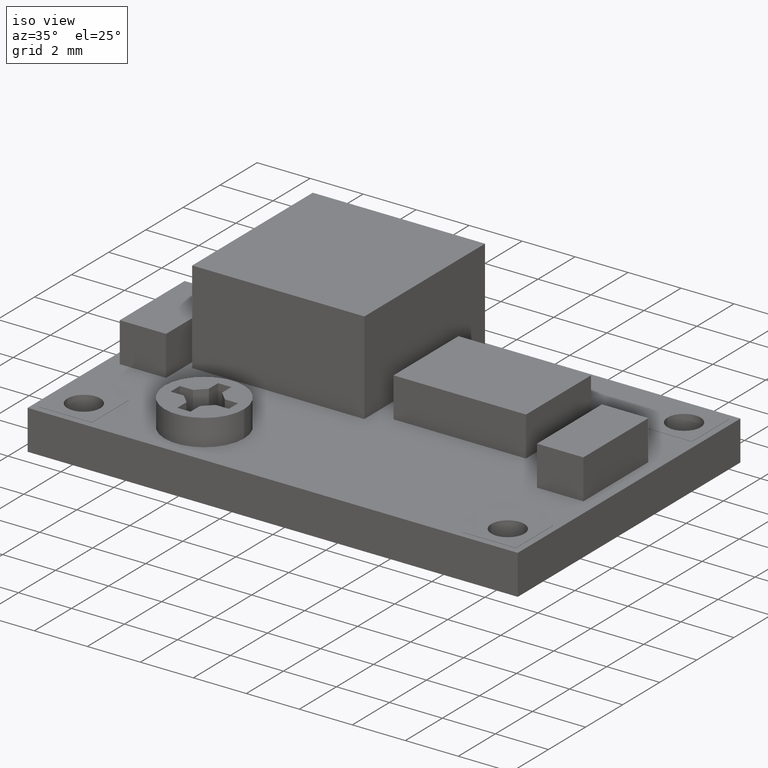
[diagram: clean part render]
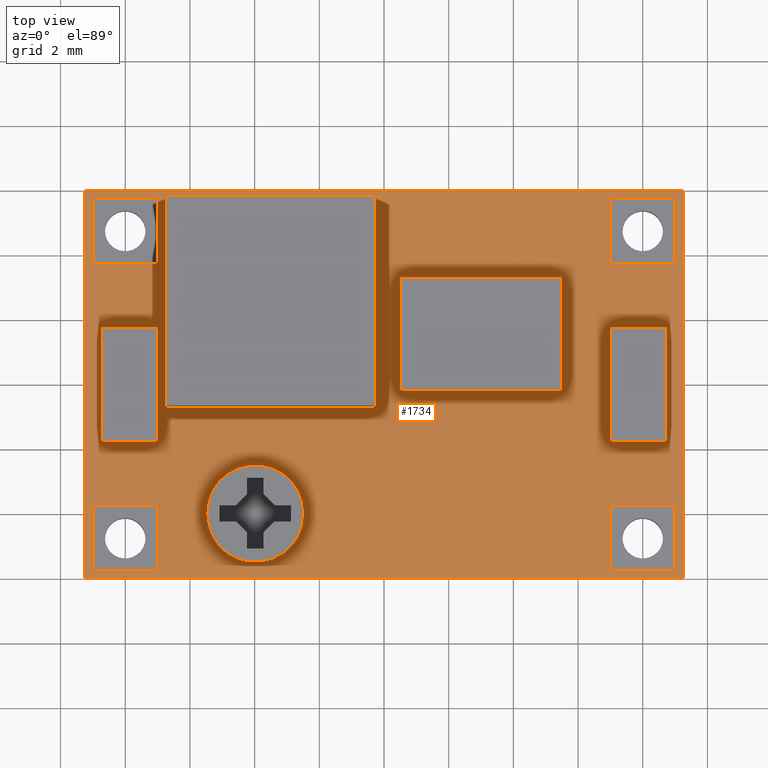
[diagram: tour spotlight — one face highlighted and labeled with its STEP entity id]
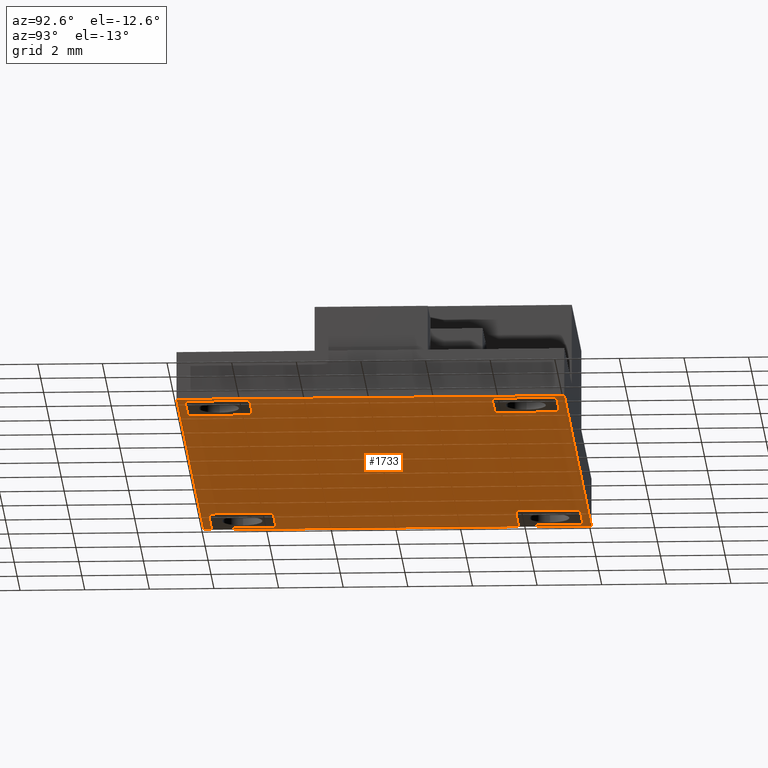
[diagram: tour spotlight — one face highlighted and labeled with its STEP entity id]
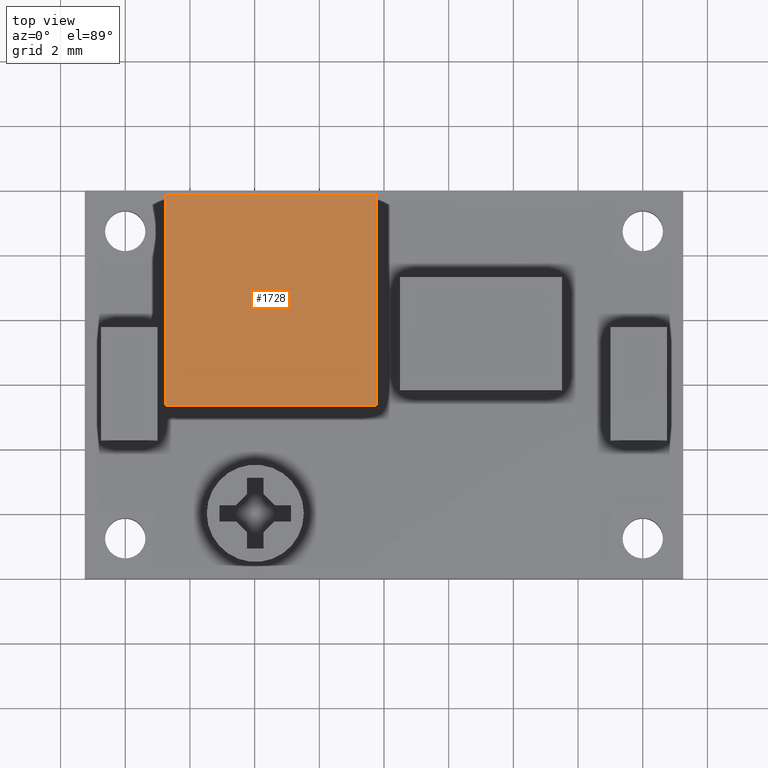
[diagram: tour spotlight — one face highlighted and labeled with its STEP entity id]
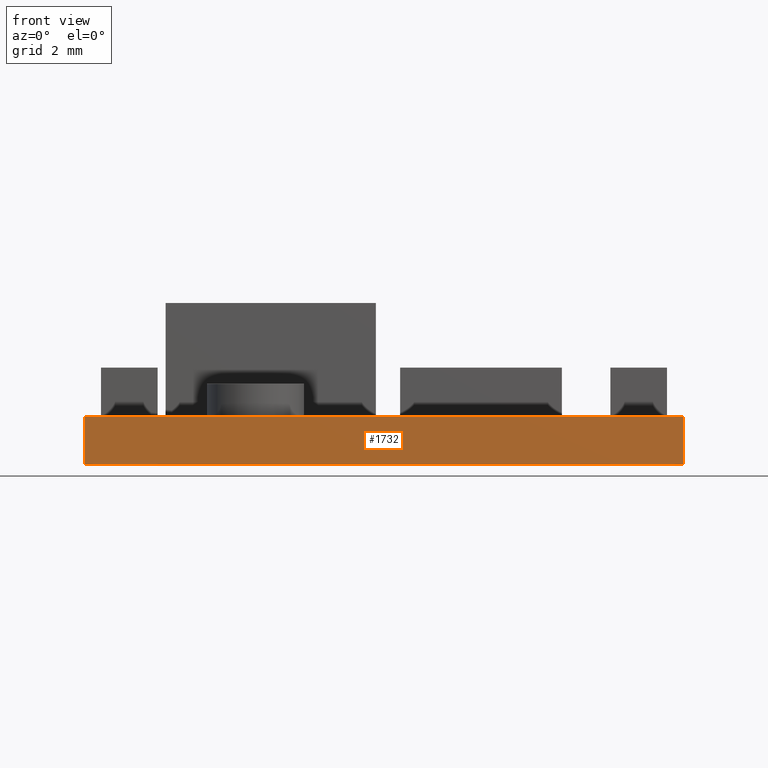
[diagram: tour spotlight — one face highlighted and labeled with its STEP entity id]
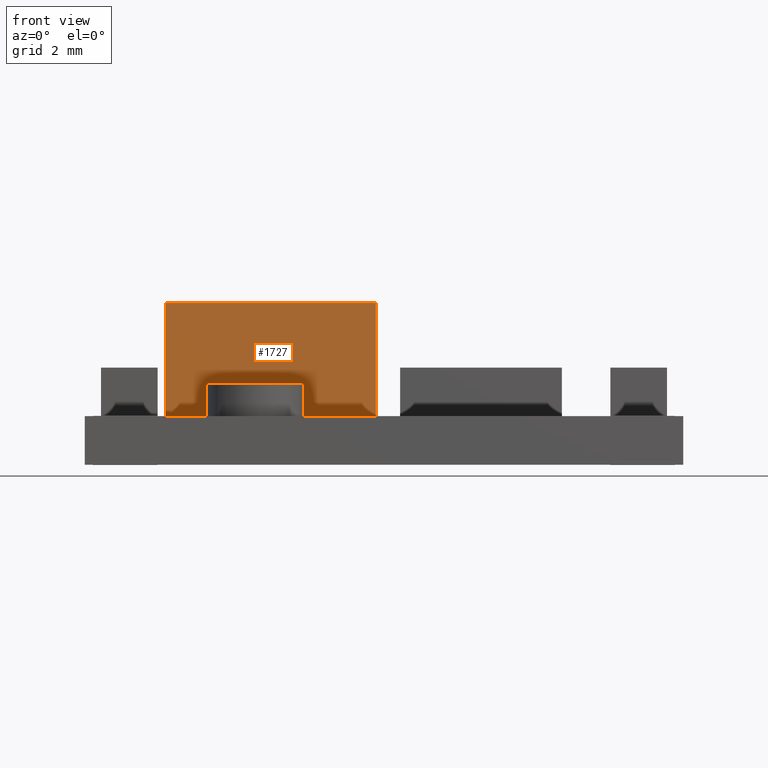
[diagram: tour spotlight — one face highlighted and labeled with its STEP entity id]
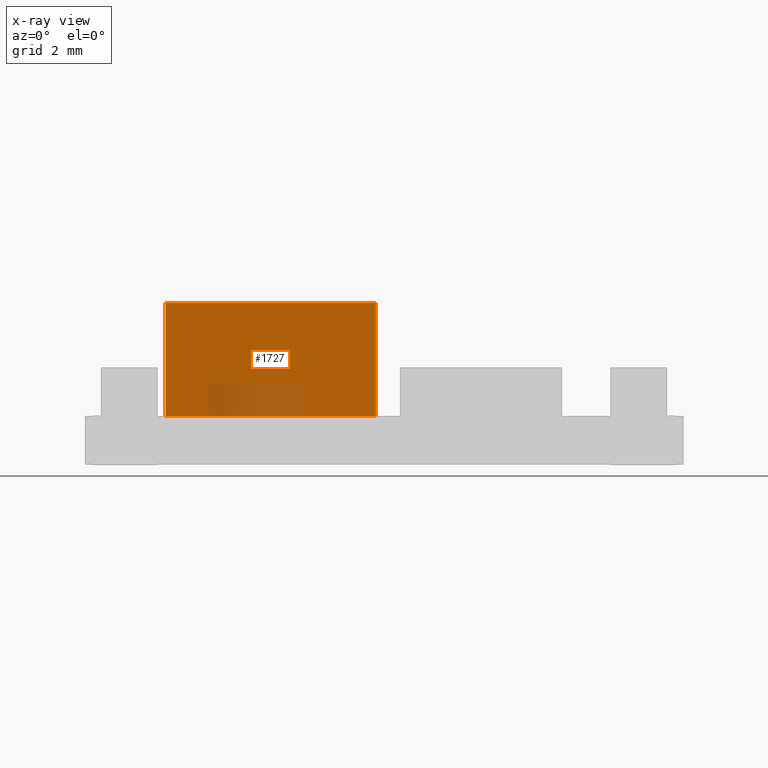
[diagram: x-ray of the same camera — body ghosted, this tour face saturated]
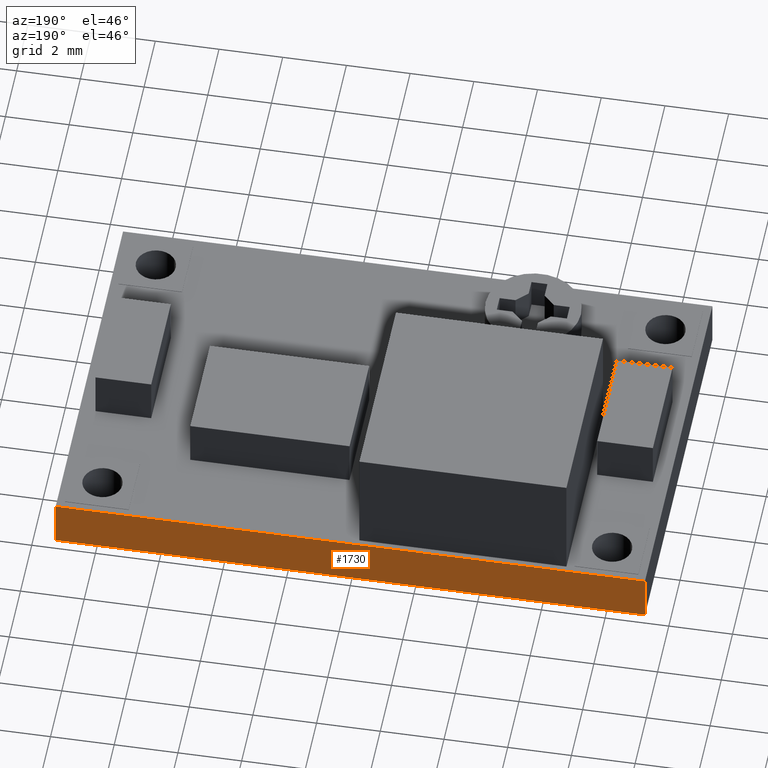
[diagram: tour spotlight — one face highlighted and labeled with its STEP entity id]
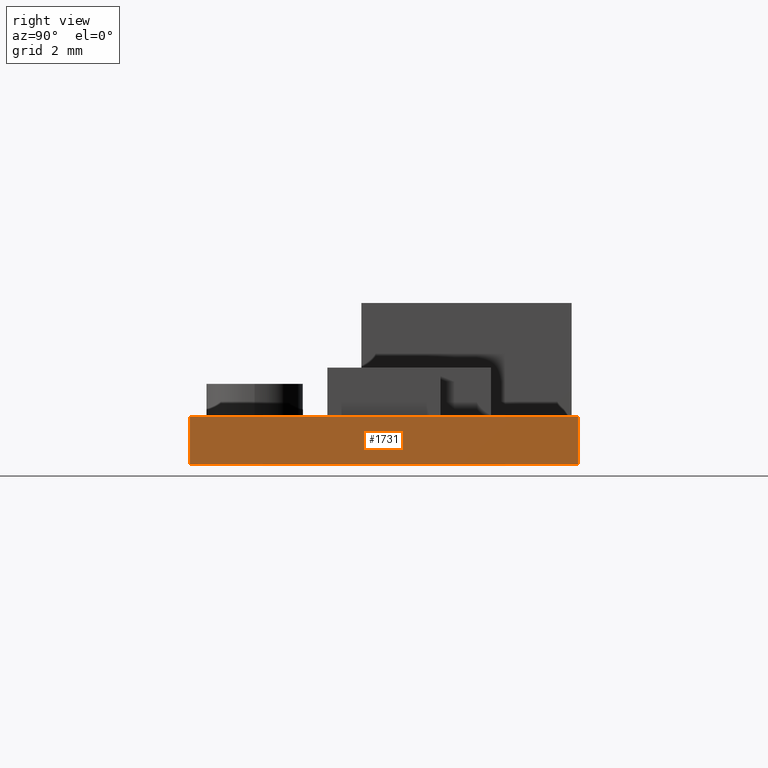
[diagram: tour spotlight — one face highlighted and labeled with its STEP entity id]
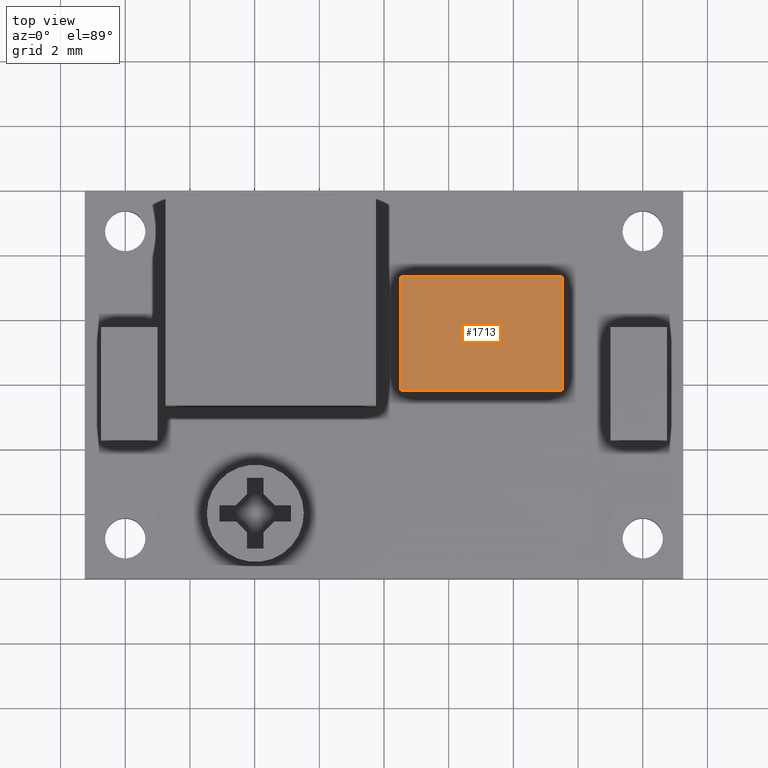
[diagram: tour spotlight — one face highlighted and labeled with its STEP entity id]
A machine part: a face-by-face anatomy tour. The part has 89 B-rep faces; the first image is the clean iso view, then the 8 largest visible faces are spotlighted one at a time (largest first), each with its STEP entity span.

Face 1 — top view, entity #1734. In plain terms, the highlighted planar face has unit normal (0, -0, 1).
Definition (entity closure, byte-faithful):
#27=FACE_BOUND('',#242,.T.);
#28=FACE_BOUND('',#243,.T.);
#29=FACE_BOUND('',#244,.T.);
#30=FACE_BOUND('',#245,.T.);
#31=FACE_BOUND('',#246,.T.);
#32=FACE_BOUND('',#247,.T.);
#33=FACE_BOUND('',#248,.T.);
#34=FACE_BOUND('',#249,.T.);
#35=FACE_BOUND('',#250,.T.);
#37=CIRCLE('',#1768,1.5);
#139=FACE_OUTER_BOUND('',#241,.T.);
#241=EDGE_LOOP('',(#1435,#1436,#1437,#1438));
#242=EDGE_LOOP('',(#1439));
#243=EDGE_LOOP('',(#1440,#1441,#1442,#1443));
#244=EDGE_LOOP('',(#1444,#1445,#1446,#1447));
#245=EDGE_LOOP('',(#1448,#1449,#1450,#1451));
#246=EDGE_LOOP('',(#1452,#1453,#1454,#1455));
#247=EDGE_LOOP('',(#1456,#1457,#1458,#1459));
#248=EDGE_LOOP('',(#1460,#1461,#1462,#1463));
#249=EDGE_LOOP('',(#1464,#1465,#1466,#1467));
#250=EDGE_LOOP('',(#1468,#1469,#1470,#1471));
#304=LINE('',#2389,#513);
#308=LINE('',#2397,#517);
#311=LINE('',#2403,#520);
#318=LINE('',#2417,#527);
#328=LINE('',#2439,#537);
#332=LINE('',#2447,#541);
#335=LINE('',#2453,#544);
#342=LINE('',#2467,#551);
#352=LINE('',#2489,#561);
#356=LINE('',#2497,#565);
#359=LINE('',#2503,#568);
#366=LINE('',#2517,#575);
#376=LINE('',#2539,#585);
#380=LINE('',#2547,#589);
#383=LINE('',#2553,#592);
#390=LINE('',#2567,#599);
#400=LINE('',#2589,#609);
#404=LINE('',#2597,#613);
#407=LINE('',#2603,#616);
#410=LINE('',#2608,#619);
#412=LINE('',#2614,#621);
#416=LINE('',#2622,#625);
#419=LINE('',#2628,#628);
#422=LINE('',#2633,#631);
#424=LINE('',#2639,#633);
#428=LINE('',#2647,#637);
#431=LINE('',#2653,#640);
#434=LINE('',#2658,#643);
#436=LINE('',#2664,#645);
#440=LINE('',#2672,#649);
#443=LINE('',#2678,#652);
#446=LINE('',#2683,#655);
#450=LINE('',#2693,#659);
#453=LINE('',#2699,#662);
#456=LINE('',#2705,#665);
#459=LINE('',#2709,#668);
#513=VECTOR('',#1971,10.);
#517=VECTOR('',#1977,10.);
#520=VECTOR('',#1982,10.);
#527=VECTOR('',#1993,10.);
#537=VECTOR('',#2015,10.);
#541=VECTOR('',#2021,10.);
#544=VECTOR('',#2026,10.);
#551=VECTOR('',#2037,10.);
#561=VECTOR('',#2059,10.);
#565=VECTOR('',#2065,10.);
#568=VECTOR('',#2070,10.);
#575=VECTOR('',#2081,10.);
#585=VECTOR('',#2103,10.);
#589=VECTOR('',#2109,10.);
#592=VECTOR('',#2114,10.);
#599=VECTOR('',#2125,10.);
#609=VECTOR('',#2147,10.);
#613=VECTOR('',#2153,10.);
#616=VECTOR('',#2158,10.);
#619=VECTOR('',#2163,10.);
#621=VECTOR('',#2169,10.);
#625=VECTOR('',#2175,10.);
#628=VECTOR('',#2180,10.);
#631=VECTOR('',#2185,10.);
#633=VECTOR('',#2191,10.);
#637=VECTOR('',#2197,10.);
#640=VECTOR('',#2202,10.);
#643=VECTOR('',#2207,10.);
#645=VECTOR('',#2213,10.);
#649=VECTOR('',#2219,10.);
#652=VECTOR('',#2224,10.);
#655=VECTOR('',#2229,10.);
#659=VECTOR('',#2237,10.);
#662=VECTOR('',#2242,10.);
#665=VECTOR('',#2247,10.);
#668=VECTOR('',#2252,10.);
#702=VERTEX_POINT('',#2358);
#711=VERTEX_POINT('',#2387);
#712=VERTEX_POINT('',#2388);
#715=VERTEX_POINT('',#2396);
#717=VERTEX_POINT('',#2402);
#727=VERTEX_POINT('',#2437);
#728=VERTEX_POINT('',#2438);
#731=VERTEX_POINT('',#2446);
#733=VERTEX_POINT('',#2452);
#743=VERTEX_POINT('',#2487);
#744=VERTEX_POINT('',#2488);
#747=VERTEX_POINT('',#2496);
#749=VERTEX_POINT('',#2502);
#759=VERTEX_POINT('',#2537);
#760=VERTEX_POINT('',#2538);
#763=VERTEX_POINT('',#2546);
#765=VERTEX_POINT('',#2552);
#775=VERTEX_POINT('',#2587);
#776=VERTEX_POINT('',#2588);
#779=VERTEX_POINT('',#2596);
#781=VERTEX_POINT('',#2602);
#783=VERTEX_POINT('',#2612);
#784=VERTEX_POINT('',#2613);
#787=VERTEX_POINT('',#2621);
#789=VERTEX_POINT('',#2627);
#791=VERTEX_POINT('',#2637);
#792=VERTEX_POINT('',#2638);
#795=VERTEX_POINT('',#2646);
#797=VERTEX_POINT('',#2652);
#799=VERTEX_POINT('',#2662);
#800=VERTEX_POINT('',#2663);
#803=VERTEX_POINT('',#2671);
#805=VERTEX_POINT('',#2677);
#809=VERTEX_POINT('',#2690);
#810=VERTEX_POINT('',#2692);
#812=VERTEX_POINT('',#2698);
#814=VERTEX_POINT('',#2704);
#865=EDGE_CURVE('',#702,#702,#37,.T.);
#878=EDGE_CURVE('',#711,#712,#304,.T.);
#882=EDGE_CURVE('',#715,#711,#308,.T.);
#885=EDGE_CURVE('',#712,#717,#311,.T.);
#892=EDGE_CURVE('',#717,#715,#318,.T.);
#902=EDGE_CURVE('',#727,#728,#328,.T.);
#906=EDGE_CURVE('',#731,#727,#332,.T.);
#909=EDGE_CURVE('',#728,#733,#335,.T.);
#916=EDGE_CURVE('',#733,#731,#342,.T.);
#926=EDGE_CURVE('',#743,#744,#352,.T.);
#930=EDGE_CURVE('',#747,#743,#356,.T.);
#933=EDGE_CURVE('',#744,#749,#359,.T.);
#940=EDGE_CURVE('',#749,#747,#366,.T.);
#950=EDGE_CURVE('',#759,#760,#376,.T.);
#954=EDGE_CURVE('',#763,#759,#380,.T.);
#957=EDGE_CURVE('',#760,#765,#383,.T.);
#964=EDGE_CURVE('',#765,#763,#390,.T.);
#974=EDGE_CURVE('',#775,#776,#400,.T.);
#978=EDGE_CURVE('',#776,#779,#404,.T.);
#981=EDGE_CURVE('',#779,#781,#407,.T.);
#984=EDGE_CURVE('',#781,#775,#410,.T.);
#986=EDGE_CURVE('',#783,#784,#412,.T.);
#990=EDGE_CURVE('',#784,#787,#416,.T.);
#993=EDGE_CURVE('',#787,#789,#419,.T.);
#996=EDGE_CURVE('',#789,#783,#422,.T.);
#998=EDGE_CURVE('',#791,#792,#424,.T.);
#1002=EDGE_CURVE('',#792,#795,#428,.T.);
#1005=EDGE_CURVE('',#795,#797,#431,.T.);
#1008=EDGE_CURVE('',#797,#791,#434,.T.);
#1010=EDGE_CURVE('',#799,#800,#436,.T.);
#1014=EDGE_CURVE('',#800,#803,#440,.T.);
#1017=EDGE_CURVE('',#803,#805,#443,.T.);
#1020=EDGE_CURVE('',#805,#799,#446,.T.);
#1024=EDGE_CURVE('',#810,#809,#450,.T.);
#1027=EDGE_CURVE('',#812,#810,#453,.T.);
#1030=EDGE_CURVE('',#814,#812,#456,.T.);
#1033=EDGE_CURVE('',#809,#814,#459,.T.);
#1435=ORIENTED_EDGE('',*,*,#1033,.T.);
#1436=ORIENTED_EDGE('',*,*,#1030,.T.);
#1437=ORIENTED_EDGE('',*,*,#1027,.T.);
#1438=ORIENTED_EDGE('',*,*,#1024,.T.);
#1439=ORIENTED_EDGE('',*,*,#865,.T.);
#1440=ORIENTED_EDGE('',*,*,#892,.T.);
#1441=ORIENTED_EDGE('',*,*,#882,.T.);
#1442=ORIENTED_EDGE('',*,*,#878,.T.);
#1443=ORIENTED_EDGE('',*,*,#885,.T.);
#1444=ORIENTED_EDGE('',*,*,#916,.T.);
#1445=ORIENTED_EDGE('',*,*,#906,.T.);
#1446=ORIENTED_EDGE('',*,*,#902,.T.);
#1447=ORIENTED_EDGE('',*,*,#909,.T.);
#1448=ORIENTED_EDGE('',*,*,#940,.T.);
#1449=ORIENTED_EDGE('',*,*,#930,.T.);
#1450=ORIENTED_EDGE('',*,*,#926,.T.);
#1451=ORIENTED_EDGE('',*,*,#933,.T.);
#1452=ORIENTED_EDGE('',*,*,#964,.T.);
#1453=ORIENTED_EDGE('',*,*,#954,.T.);
#1454=ORIENTED_EDGE('',*,*,#950,.T.);
#1455=ORIENTED_EDGE('',*,*,#957,.T.);
#1456=ORIENTED_EDGE('',*,*,#974,.T.);
#1457=ORIENTED_EDGE('',*,*,#978,.T.);
#1458=ORIENTED_EDGE('',*,*,#981,.T.);
#1459=ORIENTED_EDGE('',*,*,#984,.T.);
#1460=ORIENTED_EDGE('',*,*,#986,.T.);
#1461=ORIENTED_EDGE('',*,*,#990,.T.);
#1462=ORIENTED_EDGE('',*,*,#993,.T.);
#1463=ORIENTED_EDGE('',*,*,#996,.T.);
#1464=ORIENTED_EDGE('',*,*,#998,.T.);
#1465=ORIENTED_EDGE('',*,*,#1002,.T.);
#1466=ORIENTED_EDGE('',*,*,#1005,.T.);
#1467=ORIENTED_EDGE('',*,*,#1008,.T.);
#1468=ORIENTED_EDGE('',*,*,#1010,.T.);
#1469=ORIENTED_EDGE('',*,*,#1014,.T.);
#1470=ORIENTED_EDGE('',*,*,#1017,.T.);
#1471=ORIENTED_EDGE('',*,*,#1020,.T.);
#1555=PLANE('',#1847);
#1734=ADVANCED_FACE('',(#139,#27,#28,#29,#30,#31,#32,#33,#34,#35),#1555,
 .T.);
#1768=AXIS2_PLACEMENT_3D('',#2360,#1937,#1938);
#1847=AXIS2_PLACEMENT_3D('',#2711,#2255,#2256);
#1937=DIRECTION('center_axis',(0.,2.22044604925031E-16,-1.));
#1938=DIRECTION('ref_axis',(-1.,0.,0.));
#1971=DIRECTION('',(-5.55111512312578E-16,-1.,-2.22044604925031E-16));
#1977=DIRECTION('',(1.,0.,0.));
#1982=DIRECTION('',(-1.,-2.77555756156289E-16,-6.16297582203915E-32));
#1993=DIRECTION('',(0.,1.,2.22044604925031E-16));
#2015=DIRECTION('',(5.55111512312578E-16,-1.,-2.22044604925031E-16));
#2021=DIRECTION('',(1.,2.77555756156289E-16,6.16297582203915E-32));
#2026=DIRECTION('',(-1.,5.55111512312578E-16,1.23259516440783E-31));
#2037=DIRECTION('',(0.,1.,2.22044604925031E-16));
#2059=DIRECTION('',(0.,-1.,-2.22044604925031E-16));
#2065=DIRECTION('',(1.,0.,0.));
#2070=DIRECTION('',(-1.,0.,0.));
#2081=DIRECTION('',(-5.55111512312578E-16,1.,2.22044604925031E-16));
#2103=DIRECTION('',(5.55111512312578E-16,-1.,-2.22044604925031E-16));
#2109=DIRECTION('',(1.,5.55111512312578E-16,1.23259516440783E-31));
#2114=DIRECTION('',(-1.,0.,0.));
#2125=DIRECTION('',(5.55111512312578E-16,1.,2.22044604925031E-16));
#2147=DIRECTION('',(-1.98254111540206E-16,1.,2.22044604925031E-16));
#2153=DIRECTION('',(1.,1.11022302462516E-16,2.46519032881567E-32));
#2158=DIRECTION('',(3.1720657846433E-16,-1.,-2.22044604925031E-16));
#2163=DIRECTION('',(-1.,-2.22044604925031E-16,-4.93038065763132E-32));
#2169=DIRECTION('',(0.,1.,2.22044604925031E-16));
#2175=DIRECTION('',(1.,0.,0.));
#2180=DIRECTION('',(0.,-1.,-2.22044604925031E-16));
#2185=DIRECTION('',(-1.,0.,0.));
#2191=DIRECTION('',(0.,1.,2.22044604925031E-16));
#2197=DIRECTION('',(1.,0.,0.));
#2202=DIRECTION('',(0.,-1.,-2.22044604925031E-16));
#2207=DIRECTION('',(-1.,-1.58603289232165E-16,-3.52170046973665E-32));
#2213=DIRECTION('',(0.,1.,2.22044604925031E-16));
#2219=DIRECTION('',(1.,0.,0.));
#2224=DIRECTION('',(1.22765045992205E-16,-1.,-2.22044604925031E-16));
#2229=DIRECTION('',(-1.,4.2700885562506E-17,9.48150126467561E-33));
#2237=DIRECTION('',(0.,-1.,-2.22044604925031E-16));
#2242=DIRECTION('',(-1.,0.,0.));
#2247=DIRECTION('',(0.,1.,2.22044604925031E-16));
#2252=DIRECTION('',(1.,0.,0.));
#2255=DIRECTION('center_axis',(0.,-2.22044604925031E-16,1.));
#2256=DIRECTION('ref_axis',(0.,-1.,-2.22044604925031E-16));
#2358=CARTESIAN_POINT('',(-2.48059279229832,-10.01,-4.49));
#2360=CARTESIAN_POINT('Origin',(-3.98059279229832,-10.01,-4.49));
#2387=CARTESIAN_POINT('',(9.,-0.260000000000001,-4.49));
#2388=CARTESIAN_POINT('',(9.,-2.26,-4.49));
#2389=CARTESIAN_POINT('',(9.,-4.135,-4.49));
#2396=CARTESIAN_POINT('',(7.,-0.260000000000001,-4.49));
#2397=CARTESIAN_POINT('',(4.5,-0.260000000000001,-4.49));
#2402=CARTESIAN_POINT('',(7.,-2.26,-4.49));
#2403=CARTESIAN_POINT('',(3.5,-2.26,-4.49));
#2417=CARTESIAN_POINT('',(7.,-3.135,-4.49));
#2437=CARTESIAN_POINT('',(-7.,-9.76,-4.49));
#2438=CARTESIAN_POINT('',(-7.,-11.76,-4.49));
#2439=CARTESIAN_POINT('',(-7.,-8.885,-4.49));
#2446=CARTESIAN_POINT('',(-9.,-9.76,-4.49));
#2447=CARTESIAN_POINT('',(-3.5,-9.76,-4.49));
#2452=CARTESIAN_POINT('',(-9.,-11.76,-4.49));
#2453=CARTESIAN_POINT('',(-4.5,-11.76,-4.49));
#2467=CARTESIAN_POINT('',(-9.,-7.885,-4.49));
#2487=CARTESIAN_POINT('',(-7.,-0.260000000000001,-4.49));
#2488=CARTESIAN_POINT('',(-7.,-2.26,-4.49));
#2489=CARTESIAN_POINT('',(-7.,-4.135,-4.49));
#2496=CARTESIAN_POINT('',(-9.,-0.260000000000001,-4.49));
#2497=CARTESIAN_POINT('',(-3.5,-0.260000000000001,-4.49));
#2502=CARTESIAN_POINT('',(-9.,-2.26,-4.49));
#2503=CARTESIAN_POINT('',(-4.5,-2.26,-4.49));
#2517=CARTESIAN_POINT('',(-9.,-3.135,-4.49));
#2537=CARTESIAN_POINT('',(9.,-9.76,-4.49));
#2538=CARTESIAN_POINT('',(9.,-11.76,-4.49));
#2539=CARTESIAN_POINT('',(9.,-8.885,-4.49));
#2546=CARTESIAN_POINT('',(7.,-9.76,-4.49));
#2547=CARTESIAN_POINT('',(4.5,-9.76,-4.49));
#2552=CARTESIAN_POINT('',(7.,-11.76,-4.49));
#2553=CARTESIAN_POINT('',(3.5,-11.76,-4.49));
#2567=CARTESIAN_POINT('',(7.,-7.885,-4.49));
#2587=CARTESIAN_POINT('',(0.500000000000001,-6.21,-4.49));
#2588=CARTESIAN_POINT('',(0.5,-2.71,-4.49));
#2589=CARTESIAN_POINT('',(0.5,-4.36,-4.49));
#2596=CARTESIAN_POINT('',(5.5,-2.71,-4.49));
#2597=CARTESIAN_POINT('',(2.75,-2.71,-4.49));
#2602=CARTESIAN_POINT('',(5.5,-6.21,-4.49));
#2603=CARTESIAN_POINT('',(5.5,-6.11,-4.49));
#2608=CARTESIAN_POINT('',(0.25,-6.21,-4.49));
#2612=CARTESIAN_POINT('',(-8.75,-7.76,-4.49));
#2613=CARTESIAN_POINT('',(-8.75,-4.26,-4.49));
#2614=CARTESIAN_POINT('',(-8.75,-5.135,-4.49));
#2621=CARTESIAN_POINT('',(-7.,-4.26,-4.49));
#2622=CARTESIAN_POINT('',(-3.5,-4.26,-4.49));
#2627=CARTESIAN_POINT('',(-7.,-7.76,-4.49));
#2628=CARTESIAN_POINT('',(-7.,-6.885,-4.49));
#2633=CARTESIAN_POINT('',(-4.375,-7.76,-4.49));
#2637=CARTESIAN_POINT('',(7.,-7.76,-4.49));
#2638=CARTESIAN_POINT('',(7.,-4.26,-4.49));
#2639=CARTESIAN_POINT('',(7.,-5.135,-4.49));
#2646=CARTESIAN_POINT('',(8.75,-4.26,-4.49));
#2647=CARTESIAN_POINT('',(4.375,-4.26,-4.49));
#2652=CARTESIAN_POINT('',(8.75,-7.76,-4.49));
#2653=CARTESIAN_POINT('',(8.75,-6.885,-4.49));
#2658=CARTESIAN_POINT('',(3.5,-7.76,-4.49));
#2662=CARTESIAN_POINT('',(-6.75,-6.71,-4.49));
#2663=CARTESIAN_POINT('',(-6.75,-0.210000000000002,-4.49));
#2664=CARTESIAN_POINT('',(-6.75,-3.11,-4.49));
#2671=CARTESIAN_POINT('',(-0.25,-0.210000000000002,-4.49));
#2672=CARTESIAN_POINT('',(-0.125,-0.210000000000002,-4.49));
#2677=CARTESIAN_POINT('',(-0.249999999999999,-6.71,-4.49));
#2678=CARTESIAN_POINT('',(-0.249999999999999,-6.36,-4.49));
#2683=CARTESIAN_POINT('',(-3.375,-6.71,-4.49));
#2690=CARTESIAN_POINT('',(-9.25,-12.01,-4.49));
#2692=CARTESIAN_POINT('',(-9.25,-0.0100000000000011,-4.49));
#2693=CARTESIAN_POINT('',(-9.25,-12.01,-4.49));
#2698=CARTESIAN_POINT('',(9.25,-0.0100000000000011,-4.49));
#2699=CARTESIAN_POINT('',(-9.25,-0.0100000000000011,-4.49));
#2704=CARTESIAN_POINT('',(9.25,-12.01,-4.49));
#2705=CARTESIAN_POINT('',(9.25,-0.0100000000000011,-4.49));
#2709=CARTESIAN_POINT('',(9.25,-12.01,-4.49));
#2711=CARTESIAN_POINT('Origin',(0.,-6.01,-4.49));

Face 2 — auxiliary view, entity #1733. In plain terms, the highlighted planar face has unit normal (0, -0, 1).
Definition (entity closure, byte-faithful):
#23=FACE_BOUND('',#237,.T.);
#24=FACE_BOUND('',#238,.T.);
#25=FACE_BOUND('',#239,.T.);
#26=FACE_BOUND('',#240,.T.);
#138=FACE_OUTER_BOUND('',#236,.T.);
#236=EDGE_LOOP('',(#1415,#1416,#1417,#1418));
#237=EDGE_LOOP('',(#1419,#1420,#1421,#1422));
#238=EDGE_LOOP('',(#1423,#1424,#1425,#1426));
#239=EDGE_LOOP('',(#1427,#1428,#1429,#1430));
#240=EDGE_LOOP('',(#1431,#1432,#1433,#1434));
#314=LINE('',#2410,#523);
#320=LINE('',#2421,#529);
#325=LINE('',#2431,#534);
#327=LINE('',#2434,#536);
#338=LINE('',#2460,#547);
#344=LINE('',#2471,#553);
#349=LINE('',#2481,#558);
#351=LINE('',#2484,#560);
#362=LINE('',#2510,#571);
#368=LINE('',#2521,#577);
#373=LINE('',#2531,#582);
#375=LINE('',#2534,#584);
#386=LINE('',#2560,#595);
#392=LINE('',#2571,#601);
#397=LINE('',#2581,#606);
#399=LINE('',#2584,#608);
#448=LINE('',#2689,#657);
#452=LINE('',#2697,#661);
#455=LINE('',#2703,#664);
#458=LINE('',#2708,#667);
#523=VECTOR('',#1987,10.);
#529=VECTOR('',#1997,10.);
#534=VECTOR('',#2006,10.);
#536=VECTOR('',#2010,10.);
#547=VECTOR('',#2031,10.);
#553=VECTOR('',#2041,10.);
#558=VECTOR('',#2050,10.);
#560=VECTOR('',#2054,10.);
#571=VECTOR('',#2075,10.);
#577=VECTOR('',#2085,10.);
#582=VECTOR('',#2094,10.);
#584=VECTOR('',#2098,10.);
#595=VECTOR('',#2119,10.);
#601=VECTOR('',#2129,10.);
#606=VECTOR('',#2138,10.);
#608=VECTOR('',#2142,10.);
#657=VECTOR('',#2235,10.);
#661=VECTOR('',#2241,10.);
#664=VECTOR('',#2246,10.);
#667=VECTOR('',#2251,10.);
#719=VERTEX_POINT('',#2408);
#720=VERTEX_POINT('',#2409);
#723=VERTEX_POINT('',#2420);
#726=VERTEX_POINT('',#2430);
#735=VERTEX_POINT('',#2458);
#736=VERTEX_POINT('',#2459);
#739=VERTEX_POINT('',#2470);
#742=VERTEX_POINT('',#2480);
#751=VERTEX_POINT('',#2508);
#752=VERTEX_POINT('',#2509);
#755=VERTEX_POINT('',#2520);
#758=VERTEX_POINT('',#2530);
#767=VERTEX_POINT('',#2558);
#768=VERTEX_POINT('',#2559);
#771=VERTEX_POINT('',#2570);
#774=VERTEX_POINT('',#2580);
#807=VERTEX_POINT('',#2687);
#808=VERTEX_POINT('',#2688);
#811=VERTEX_POINT('',#2696);
#813=VERTEX_POINT('',#2702);
#888=EDGE_CURVE('',#719,#720,#314,.T.);
#894=EDGE_CURVE('',#723,#719,#320,.T.);
#899=EDGE_CURVE('',#726,#723,#325,.T.);
#901=EDGE_CURVE('',#720,#726,#327,.T.);
#912=EDGE_CURVE('',#735,#736,#338,.T.);
#918=EDGE_CURVE('',#739,#735,#344,.T.);
#923=EDGE_CURVE('',#742,#739,#349,.T.);
#925=EDGE_CURVE('',#736,#742,#351,.T.);
#936=EDGE_CURVE('',#751,#752,#362,.T.);
#942=EDGE_CURVE('',#755,#751,#368,.T.);
#947=EDGE_CURVE('',#758,#755,#373,.T.);
#949=EDGE_CURVE('',#752,#758,#375,.T.);
#960=EDGE_CURVE('',#767,#768,#386,.T.);
#966=EDGE_CURVE('',#771,#767,#392,.T.);
#971=EDGE_CURVE('',#774,#771,#397,.T.);
#973=EDGE_CURVE('',#768,#774,#399,.T.);
#1022=EDGE_CURVE('',#807,#808,#448,.T.);
#1026=EDGE_CURVE('',#808,#811,#452,.T.);
#1029=EDGE_CURVE('',#811,#813,#455,.T.);
#1032=EDGE_CURVE('',#813,#807,#458,.T.);
#1415=ORIENTED_EDGE('',*,*,#1032,.T.);
#1416=ORIENTED_EDGE('',*,*,#1022,.T.);
#1417=ORIENTED_EDGE('',*,*,#1026,.T.);
#1418=ORIENTED_EDGE('',*,*,#1029,.T.);
#1419=ORIENTED_EDGE('',*,*,#894,.T.);
#1420=ORIENTED_EDGE('',*,*,#888,.T.);
#1421=ORIENTED_EDGE('',*,*,#901,.T.);
#1422=ORIENTED_EDGE('',*,*,#899,.T.);
#1423=ORIENTED_EDGE('',*,*,#918,.T.);
#1424=ORIENTED_EDGE('',*,*,#912,.T.);
#1425=ORIENTED_EDGE('',*,*,#925,.T.);
#1426=ORIENTED_EDGE('',*,*,#923,.T.);
#1427=ORIENTED_EDGE('',*,*,#942,.T.);
#1428=ORIENTED_EDGE('',*,*,#936,.T.);
#1429=ORIENTED_EDGE('',*,*,#949,.T.);
#1430=ORIENTED_EDGE('',*,*,#947,.T.);
#1431=ORIENTED_EDGE('',*,*,#966,.T.);
#1432=ORIENTED_EDGE('',*,*,#960,.T.);
#1433=ORIENTED_EDGE('',*,*,#973,.T.);
#1434=ORIENTED_EDGE('',*,*,#971,.T.);
#1554=PLANE('',#1846);
#1733=ADVANCED_FACE('',(#138,#23,#24,#25,#26),#1554,.F.);
#1846=AXIS2_PLACEMENT_3D('',#2710,#2253,#2254);
#1987=DIRECTION('',(1.,2.77555756156289E-16,6.16297582203915E-32));
#1997=DIRECTION('',(0.,-1.,-2.22044604925031E-16));
#2006=DIRECTION('',(-1.,0.,0.));
#2010=DIRECTION('',(5.55111512312578E-16,1.,2.22044604925031E-16));
#2031=DIRECTION('',(1.,-5.55111512312578E-16,-1.23259516440783E-31));
#2041=DIRECTION('',(0.,-1.,-2.22044604925031E-16));
#2050=DIRECTION('',(-1.,-2.77555756156289E-16,-6.16297582203915E-32));
#2054=DIRECTION('',(-5.55111512312578E-16,1.,2.22044604925031E-16));
#2075=DIRECTION('',(1.,0.,0.));
#2085=DIRECTION('',(5.55111512312578E-16,-1.,-2.22044604925031E-16));
#2094=DIRECTION('',(-1.,0.,0.));
#2098=DIRECTION('',(0.,1.,2.22044604925031E-16));
#2119=DIRECTION('',(1.,0.,0.));
#2129=DIRECTION('',(-5.55111512312578E-16,-1.,-2.22044604925031E-16));
#2138=DIRECTION('',(-1.,-5.55111512312578E-16,-1.23259516440783E-31));
#2142=DIRECTION('',(-5.55111512312578E-16,1.,2.22044604925031E-16));
#2235=DIRECTION('',(0.,1.,2.22044604925031E-16));
#2241=DIRECTION('',(1.,0.,0.));
#2246=DIRECTION('',(0.,-1.,-2.22044604925031E-16));
#2251=DIRECTION('',(-1.,0.,0.));
#2253=DIRECTION('center_axis',(0.,-2.22044604925031E-16,1.));
#2254=DIRECTION('ref_axis',(0.,-1.,-2.22044604925031E-16));
#2408=CARTESIAN_POINT('',(7.,-2.26,-5.99));
#2409=CARTESIAN_POINT('',(9.,-2.26,-5.99));
#2410=CARTESIAN_POINT('',(3.5,-2.26,-5.99));
#2420=CARTESIAN_POINT('',(7.,-0.260000000000001,-5.99));
#2421=CARTESIAN_POINT('',(7.,-3.135,-5.99));
#2430=CARTESIAN_POINT('',(9.,-0.260000000000001,-5.99));
#2431=CARTESIAN_POINT('',(4.5,-0.260000000000001,-5.99));
#2434=CARTESIAN_POINT('',(9.,-4.135,-5.99));
#2458=CARTESIAN_POINT('',(-9.,-11.76,-5.99));
#2459=CARTESIAN_POINT('',(-7.,-11.76,-5.99));
#2460=CARTESIAN_POINT('',(-4.5,-11.76,-5.99));
#2470=CARTESIAN_POINT('',(-9.,-9.76,-5.99));
#2471=CARTESIAN_POINT('',(-9.,-7.885,-5.99));
#2480=CARTESIAN_POINT('',(-7.,-9.76,-5.99));
#2481=CARTESIAN_POINT('',(-3.5,-9.76,-5.99));
#2484=CARTESIAN_POINT('',(-7.,-8.885,-5.99));
#2508=CARTESIAN_POINT('',(-9.,-2.26,-5.99));
#2509=CARTESIAN_POINT('',(-7.,-2.26,-5.99));
#2510=CARTESIAN_POINT('',(-4.5,-2.26,-5.99));
#2520=CARTESIAN_POINT('',(-9.,-0.260000000000001,-5.99));
#2521=CARTESIAN_POINT('',(-9.,-3.135,-5.99));
#2530=CARTESIAN_POINT('',(-7.,-0.260000000000001,-5.99));
#2531=CARTESIAN_POINT('',(-3.5,-0.260000000000001,-5.99));
#2534=CARTESIAN_POINT('',(-7.,-4.135,-5.99));
#2558=CARTESIAN_POINT('',(7.,-11.76,-5.99));
#2559=CARTESIAN_POINT('',(9.,-11.76,-5.99));
#2560=CARTESIAN_POINT('',(3.5,-11.76,-5.99));
#2570=CARTESIAN_POINT('',(7.,-9.76,-5.99));
#2571=CARTESIAN_POINT('',(7.,-7.885,-5.99));
#2580=CARTESIAN_POINT('',(9.,-9.76,-5.99));
#2581=CARTESIAN_POINT('',(4.5,-9.76,-5.99));
#2584=CARTESIAN_POINT('',(9.,-8.885,-5.99));
#2687=CARTESIAN_POINT('',(-9.25,-12.01,-5.99));
#2688=CARTESIAN_POINT('',(-9.25,-0.0100000000000011,-5.99));
#2689=CARTESIAN_POINT('',(-9.25,-12.01,-5.99));
#2696=CARTESIAN_POINT('',(9.25,-0.0100000000000011,-5.99));
#2697=CARTESIAN_POINT('',(-9.25,-0.0100000000000011,-5.99));
#2702=CARTESIAN_POINT('',(9.25,-12.01,-5.99));
#2703=CARTESIAN_POINT('',(9.25,-0.0100000000000011,-5.99));
#2708=CARTESIAN_POINT('',(9.25,-12.01,-5.99));
#2710=CARTESIAN_POINT('Origin',(0.,-6.01,-5.99));

Face 3 — top view, entity #1728. In plain terms, the highlighted planar face has unit normal (0, -0, 1).
Definition (entity closure, byte-faithful):
#133=FACE_OUTER_BOUND('',#231,.T.);
#231=EDGE_LOOP('',(#1395,#1396,#1397,#1398));
#438=LINE('',#2668,#647);
#441=LINE('',#2674,#650);
#444=LINE('',#2680,#653);
#447=LINE('',#2684,#656);
#647=VECTOR('',#2215,10.);
#650=VECTOR('',#2220,10.);
#653=VECTOR('',#2225,10.);
#656=VECTOR('',#2230,10.);
#801=VERTEX_POINT('',#2665);
#802=VERTEX_POINT('',#2667);
#804=VERTEX_POINT('',#2673);
#806=VERTEX_POINT('',#2679);
#1012=EDGE_CURVE('',#802,#801,#438,.T.);
#1015=EDGE_CURVE('',#804,#802,#441,.T.);
#1018=EDGE_CURVE('',#806,#804,#444,.T.);
#1021=EDGE_CURVE('',#801,#806,#447,.T.);
#1395=ORIENTED_EDGE('',*,*,#1021,.T.);
#1396=ORIENTED_EDGE('',*,*,#1018,.T.);
#1397=ORIENTED_EDGE('',*,*,#1015,.T.);
#1398=ORIENTED_EDGE('',*,*,#1012,.T.);
#1549=PLANE('',#1841);
#1728=ADVANCED_FACE('',(#133),#1549,.T.);
#1841=AXIS2_PLACEMENT_3D('',#2685,#2231,#2232);
#2215=DIRECTION('',(0.,-1.,-2.22044604925031E-16));
#2220=DIRECTION('',(-1.,0.,0.));
#2225=DIRECTION('',(-1.22765045992205E-16,1.,2.22044604925031E-16));
#2230=DIRECTION('',(1.,-4.2700885562506E-17,-9.48150126467561E-33));
#2231=DIRECTION('center_axis',(0.,-2.22044604925031E-16,1.));
#2232=DIRECTION('ref_axis',(0.,-1.,-2.22044604925031E-16));
#2665=CARTESIAN_POINT('',(-6.75,-6.71,-0.990000000000002));
#2667=CARTESIAN_POINT('',(-6.75,-0.210000000000004,-0.990000000000001));
#2668=CARTESIAN_POINT('',(-6.75,-6.71,-0.990000000000002));
#2673=CARTESIAN_POINT('',(-0.25,-0.210000000000004,-0.990000000000001));
#2674=CARTESIAN_POINT('',(-6.75,-0.210000000000004,-0.990000000000001));
#2679=CARTESIAN_POINT('',(-0.249999999999999,-6.71,-0.990000000000002));
#2680=CARTESIAN_POINT('',(-0.25,-0.210000000000004,-0.990000000000001));
#2684=CARTESIAN_POINT('',(-0.249999999999999,-6.71,-0.990000000000002));
#2685=CARTESIAN_POINT('Origin',(-3.5,-3.46,-0.990000000000001));

Face 4 — front view, entity #1732. In plain terms, the highlighted planar face has unit normal (0, -1, -0).
Definition (entity closure, byte-faithful):
#137=FACE_OUTER_BOUND('',#235,.T.);
#235=EDGE_LOOP('',(#1411,#1412,#1413,#1414));
#449=LINE('',#2691,#658);
#457=LINE('',#2706,#666);
#458=LINE('',#2708,#667);
#459=LINE('',#2709,#668);
#658=VECTOR('',#2236,10.);
#666=VECTOR('',#2248,10.);
#667=VECTOR('',#2251,10.);
#668=VECTOR('',#2252,10.);
#807=VERTEX_POINT('',#2687);
#809=VERTEX_POINT('',#2690);
#813=VERTEX_POINT('',#2702);
#814=VERTEX_POINT('',#2704);
#1023=EDGE_CURVE('',#807,#809,#449,.T.);
#1031=EDGE_CURVE('',#813,#814,#457,.T.);
#1032=EDGE_CURVE('',#813,#807,#458,.T.);
#1033=EDGE_CURVE('',#809,#814,#459,.T.);
#1411=ORIENTED_EDGE('',*,*,#1032,.F.);
#1412=ORIENTED_EDGE('',*,*,#1031,.T.);
#1413=ORIENTED_EDGE('',*,*,#1033,.F.);
#1414=ORIENTED_EDGE('',*,*,#1023,.F.);
#1553=PLANE('',#1845);
#1732=ADVANCED_FACE('',(#137),#1553,.T.);
#1845=AXIS2_PLACEMENT_3D('',#2707,#2249,#2250);
#2236=DIRECTION('',(0.,-2.22044604925031E-16,1.));
#2248=DIRECTION('',(0.,-2.22044604925031E-16,1.));
#2249=DIRECTION('center_axis',(0.,-1.,-2.22044604925031E-16));
#2250=DIRECTION('ref_axis',(1.,0.,0.));
#2251=DIRECTION('',(-1.,0.,0.));
#2252=DIRECTION('',(1.,0.,0.));
#2687=CARTESIAN_POINT('',(-9.25,-12.01,-5.99));
#2690=CARTESIAN_POINT('',(-9.25,-12.01,-4.49));
#2691=CARTESIAN_POINT('',(-9.25,-12.01,-5.99));
#2702=CARTESIAN_POINT('',(9.25,-12.01,-5.99));
#2704=CARTESIAN_POINT('',(9.25,-12.01,-4.49));
#2706=CARTESIAN_POINT('',(9.25,-12.01,-5.99));
#2707=CARTESIAN_POINT('Origin',(-9.25,-12.01,-5.99));
#2708=CARTESIAN_POINT('',(9.25,-12.01,-5.99));
#2709=CARTESIAN_POINT('',(9.25,-12.01,-4.49));

Face 5 — front view, entity #1727. An x-ray twin of the same camera follows (body ghosted, this face saturated) — the face is partly hidden behind the body. In plain terms, the highlighted planar face has unit normal (-0, -1, -0).
Definition (entity closure, byte-faithful):
#132=FACE_OUTER_BOUND('',#230,.T.);
#230=EDGE_LOOP('',(#1391,#1392,#1393,#1394));
#437=LINE('',#2666,#646);
#445=LINE('',#2681,#654);
#446=LINE('',#2683,#655);
#447=LINE('',#2684,#656);
#646=VECTOR('',#2214,10.);
#654=VECTOR('',#2226,10.);
#655=VECTOR('',#2229,10.);
#656=VECTOR('',#2230,10.);
#799=VERTEX_POINT('',#2662);
#801=VERTEX_POINT('',#2665);
#805=VERTEX_POINT('',#2677);
#806=VERTEX_POINT('',#2679);
#1011=EDGE_CURVE('',#799,#801,#437,.T.);
#1019=EDGE_CURVE('',#805,#806,#445,.T.);
#1020=EDGE_CURVE('',#805,#799,#446,.T.);
#1021=EDGE_CURVE('',#801,#806,#447,.T.);
#1391=ORIENTED_EDGE('',*,*,#1020,.F.);
#1392=ORIENTED_EDGE('',*,*,#1019,.T.);
#1393=ORIENTED_EDGE('',*,*,#1021,.F.);
#1394=ORIENTED_EDGE('',*,*,#1011,.F.);
#1548=PLANE('',#1840);
#1727=ADVANCED_FACE('',(#132),#1548,.T.);
#1840=AXIS2_PLACEMENT_3D('',#2682,#2227,#2228);
#2214=DIRECTION('',(0.,-2.22044604925031E-16,1.));
#2226=DIRECTION('',(0.,-2.22044604925031E-16,1.));
#2227=DIRECTION('center_axis',(-4.2700885562506E-17,-1.,-2.22044604925031E-16));
#2228=DIRECTION('ref_axis',(1.,-4.2700885562506E-17,-9.48150126467562E-33));
#2229=DIRECTION('',(-1.,4.2700885562506E-17,9.48150126467561E-33));
#2230=DIRECTION('',(1.,-4.2700885562506E-17,-9.48150126467561E-33));
#2662=CARTESIAN_POINT('',(-6.75,-6.71,-4.49));
#2665=CARTESIAN_POINT('',(-6.75,-6.71,-0.990000000000002));
#2666=CARTESIAN_POINT('',(-6.75,-6.71,-4.49));
#2677=CARTESIAN_POINT('',(-0.249999999999999,-6.71,-4.49));
#2679=CARTESIAN_POINT('',(-0.249999999999999,-6.71,-0.990000000000002));
#2681=CARTESIAN_POINT('',(-0.249999999999999,-6.71,-4.49));
#2682=CARTESIAN_POINT('Origin',(-6.75,-6.71,-4.49));
#2683=CARTESIAN_POINT('',(-3.375,-6.71,-4.49));
#2684=CARTESIAN_POINT('',(-0.249999999999999,-6.71,-0.990000000000002));

Face 6 — auxiliary view, entity #1730. In plain terms, the highlighted planar face has unit normal (0, 1, 0).
Definition (entity closure, byte-faithful):
#135=FACE_OUTER_BOUND('',#233,.T.);
#233=EDGE_LOOP('',(#1403,#1404,#1405,#1406));
#451=LINE('',#2694,#660);
#452=LINE('',#2697,#661);
#453=LINE('',#2699,#662);
#454=LINE('',#2700,#663);
#660=VECTOR('',#2238,10.);
#661=VECTOR('',#2241,10.);
#662=VECTOR('',#2242,10.);
#663=VECTOR('',#2243,10.);
#808=VERTEX_POINT('',#2688);
#810=VERTEX_POINT('',#2692);
#811=VERTEX_POINT('',#2696);
#812=VERTEX_POINT('',#2698);
#1025=EDGE_CURVE('',#808,#810,#451,.T.);
#1026=EDGE_CURVE('',#808,#811,#452,.T.);
#1027=EDGE_CURVE('',#812,#810,#453,.T.);
#1028=EDGE_CURVE('',#811,#812,#454,.T.);
#1403=ORIENTED_EDGE('',*,*,#1026,.F.);
#1404=ORIENTED_EDGE('',*,*,#1025,.T.);
#1405=ORIENTED_EDGE('',*,*,#1027,.F.);
#1406=ORIENTED_EDGE('',*,*,#1028,.F.);
#1551=PLANE('',#1843);
#1730=ADVANCED_FACE('',(#135),#1551,.T.);
#1843=AXIS2_PLACEMENT_3D('',#2695,#2239,#2240);
#2238=DIRECTION('',(0.,-2.22044604925031E-16,1.));
#2239=DIRECTION('center_axis',(0.,1.,2.22044604925031E-16));
#2240=DIRECTION('ref_axis',(-1.,0.,0.));
#2241=DIRECTION('',(1.,0.,0.));
#2242=DIRECTION('',(-1.,0.,0.));
#2243=DIRECTION('',(0.,-2.22044604925031E-16,1.));
#2688=CARTESIAN_POINT('',(-9.25,-0.0100000000000011,-5.99));
#2692=CARTESIAN_POINT('',(-9.25,-0.0100000000000011,-4.49));
#2694=CARTESIAN_POINT('',(-9.25,-0.0100000000000011,-5.99));
#2695=CARTESIAN_POINT('Origin',(9.25,-0.0100000000000011,-5.99));
#2696=CARTESIAN_POINT('',(9.25,-0.0100000000000011,-5.99));
#2697=CARTESIAN_POINT('',(-9.25,-0.0100000000000011,-5.99));
#2698=CARTESIAN_POINT('',(9.25,-0.0100000000000011,-4.49));
#2699=CARTESIAN_POINT('',(-9.25,-0.0100000000000011,-4.49));
#2700=CARTESIAN_POINT('',(9.25,-0.0100000000000011,-5.99));

Face 7 — right view, entity #1731. In plain terms, the highlighted planar face has unit normal (1, 0, 0).
Definition (entity closure, byte-faithful):
#136=FACE_OUTER_BOUND('',#234,.T.);
#234=EDGE_LOOP('',(#1407,#1408,#1409,#1410));
#454=LINE('',#2700,#663);
#455=LINE('',#2703,#664);
#456=LINE('',#2705,#665);
#457=LINE('',#2706,#666);
#663=VECTOR('',#2243,10.);
#664=VECTOR('',#2246,10.);
#665=VECTOR('',#2247,10.);
#666=VECTOR('',#2248,10.);
#811=VERTEX_POINT('',#2696);
#812=VERTEX_POINT('',#2698);
#813=VERTEX_POINT('',#2702);
#814=VERTEX_POINT('',#2704);
#1028=EDGE_CURVE('',#811,#812,#454,.T.);
#1029=EDGE_CURVE('',#811,#813,#455,.T.);
#1030=EDGE_CURVE('',#814,#812,#456,.T.);
#1031=EDGE_CURVE('',#813,#814,#457,.T.);
#1407=ORIENTED_EDGE('',*,*,#1029,.F.);
#1408=ORIENTED_EDGE('',*,*,#1028,.T.);
#1409=ORIENTED_EDGE('',*,*,#1030,.F.);
#1410=ORIENTED_EDGE('',*,*,#1031,.F.);
#1552=PLANE('',#1844);
#1731=ADVANCED_FACE('',(#136),#1552,.T.);
#1844=AXIS2_PLACEMENT_3D('',#2701,#2244,#2245);
#2243=DIRECTION('',(0.,-2.22044604925031E-16,1.));
#2244=DIRECTION('center_axis',(1.,0.,0.));
#2245=DIRECTION('ref_axis',(0.,1.,2.22044604925031E-16));
#2246=DIRECTION('',(0.,-1.,-2.22044604925031E-16));
#2247=DIRECTION('',(0.,1.,2.22044604925031E-16));
#2248=DIRECTION('',(0.,-2.22044604925031E-16,1.));
#2696=CARTESIAN_POINT('',(9.25,-0.0100000000000011,-5.99));
#2698=CARTESIAN_POINT('',(9.25,-0.0100000000000011,-4.49));
#2700=CARTESIAN_POINT('',(9.25,-0.0100000000000011,-5.99));
#2701=CARTESIAN_POINT('Origin',(9.25,-12.01,-5.99));
#2702=CARTESIAN_POINT('',(9.25,-12.01,-5.99));
#2703=CARTESIAN_POINT('',(9.25,-0.0100000000000011,-5.99));
#2704=CARTESIAN_POINT('',(9.25,-12.01,-4.49));
#2705=CARTESIAN_POINT('',(9.25,-0.0100000000000011,-4.49));
#2706=CARTESIAN_POINT('',(9.25,-12.01,-5.99));

Face 8 — top view, entity #1713. In plain terms, the highlighted planar face has unit normal (0, -0, 1).
Definition (entity closure, byte-faithful):
#118=FACE_OUTER_BOUND('',#216,.T.);
#216=EDGE_LOOP('',(#1335,#1336,#1337,#1338));
#402=LINE('',#2593,#611);
#405=LINE('',#2599,#614);
#408=LINE('',#2605,#617);
#411=LINE('',#2609,#620);
#611=VECTOR('',#2149,10.);
#614=VECTOR('',#2154,10.);
#617=VECTOR('',#2159,10.);
#620=VECTOR('',#2164,10.);
#777=VERTEX_POINT('',#2590);
#778=VERTEX_POINT('',#2592);
#780=VERTEX_POINT('',#2598);
#782=VERTEX_POINT('',#2604);
#976=EDGE_CURVE('',#778,#777,#402,.T.);
#979=EDGE_CURVE('',#780,#778,#405,.T.);
#982=EDGE_CURVE('',#782,#780,#408,.T.);
#985=EDGE_CURVE('',#777,#782,#411,.T.);
#1335=ORIENTED_EDGE('',*,*,#985,.T.);
#1336=ORIENTED_EDGE('',*,*,#982,.T.);
#1337=ORIENTED_EDGE('',*,*,#979,.T.);
#1338=ORIENTED_EDGE('',*,*,#976,.T.);
#1534=PLANE('',#1826);
#1713=ADVANCED_FACE('',(#118),#1534,.T.);
#1826=AXIS2_PLACEMENT_3D('',#2610,#2165,#2166);
#2149=DIRECTION('',(1.98254111540206E-16,-1.,-2.22044604925031E-16));
#2154=DIRECTION('',(-1.,-1.11022302462516E-16,-2.46519032881567E-32));
#2159=DIRECTION('',(-3.1720657846433E-16,1.,2.22044604925031E-16));
#2164=DIRECTION('',(1.,2.22044604925031E-16,4.93038065763132E-32));
#2165=DIRECTION('center_axis',(0.,-2.22044604925031E-16,1.));
#2166=DIRECTION('ref_axis',(0.,-1.,-2.22044604925031E-16));
#2590=CARTESIAN_POINT('',(0.5,-6.21,-2.99));
#2592=CARTESIAN_POINT('',(0.5,-2.71,-2.99));
#2593=CARTESIAN_POINT('',(0.500000000000001,-6.21,-2.99));
#2598=CARTESIAN_POINT('',(5.5,-2.71,-2.99));
#2599=CARTESIAN_POINT('',(0.5,-2.71,-2.99));
#2604=CARTESIAN_POINT('',(5.5,-6.21,-2.99));
#2605=CARTESIAN_POINT('',(5.5,-2.71,-2.99));
#2609=CARTESIAN_POINT('',(5.5,-6.21,-2.99));
#2610=CARTESIAN_POINT('Origin',(3.,-4.46,-2.99));